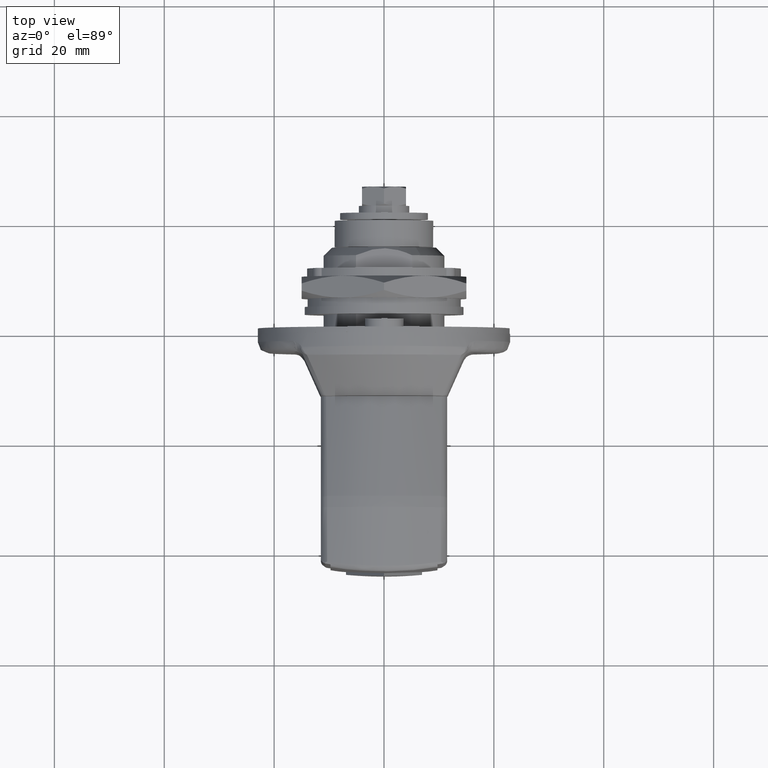
[diagram: clean part render]
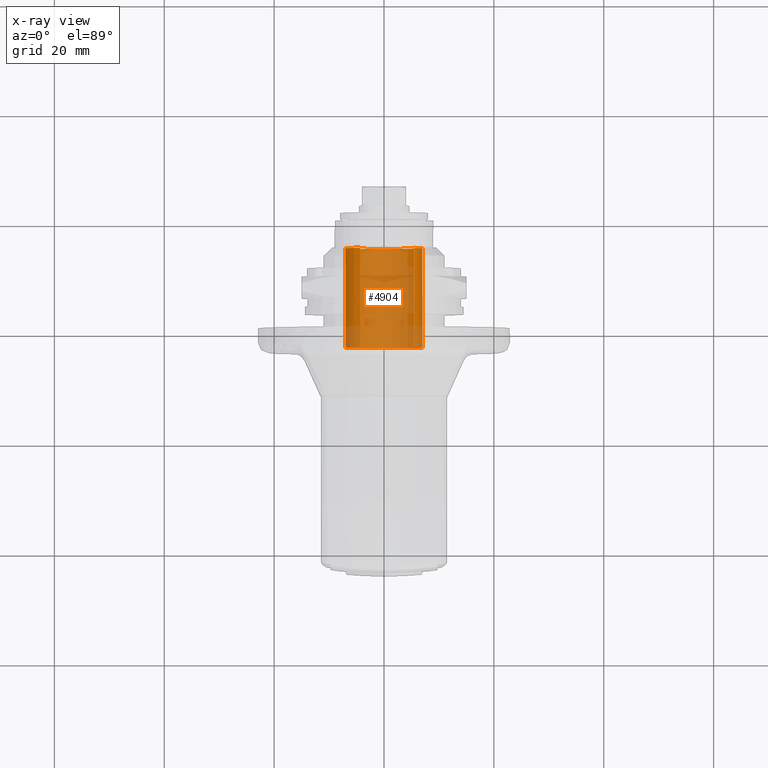
[diagram: x-ray — body ghosted, one internal face saturated and labeled with its STEP entity id]
A machine part, top view, then the same camera in x-ray: the body is ghosted and one INTERNAL B-rep face — a face not visible from any outside direction — is saturated and labeled: STEP entity #4904.
In plain terms, the highlighted face is a freeform B-spline surface patch.
Its self-contained STEP definition (entity closure, byte-faithful):
#4770=CARTESIAN_POINT('',(15.052500004397061,4.357602456463335,5.478257097966896));
#4771=CARTESIAN_POINT('',(15.052500004397062,9.835859554430231,1.120654641503561));
#4772=CARTESIAN_POINT('',(15.052500004397061,5.478257097966896,-4.357602456463335));
#4773=CARTESIAN_POINT('',(15.052500004397062,1.120654641503561,-9.835859554430231));
#4774=CARTESIAN_POINT('',(15.052500004397061,-4.357602456463335,-5.478257097966896));
#4775=CARTESIAN_POINT('',(15.052500004397062,-9.835859554430231,-1.120654641503561));
#4776=CARTESIAN_POINT('',(15.052500004397061,-5.478257097966896,4.357602456463335));
#4777=CARTESIAN_POINT('',(-3.963812500109928,4.357602456463335,5.478257097966896));
#4778=CARTESIAN_POINT('',(-3.963812500109928,9.835859554430231,1.120654641503561));
#4779=CARTESIAN_POINT('',(-3.963812500109928,5.478257097966896,-4.357602456463335));
#4780=CARTESIAN_POINT('',(-3.963812500109928,1.120654641503561,-9.835859554430231));
#4781=CARTESIAN_POINT('',(-3.963812500109928,-4.357602456463335,-5.478257097966896));
#4782=CARTESIAN_POINT('',(-3.963812500109928,-9.835859554430231,-1.120654641503561));
#4783=CARTESIAN_POINT('',(-3.963812500109928,-5.478257097966896,4.357602456463335));
#4791=(BOUNDED_SURFACE()B_SPLINE_SURFACE(2,1,((#4770,#4777),(#4771,#4778),(#4772,#4779),(#4773,#4780),(#4774,#4781),(#4775,#4782),(#4776,#4783)),.UNSPECIFIED.,.F.,.F.,.U.)B_SPLINE_SURFACE_WITH_KNOTS((3,2,2,3),(2,2),(0.0,11.597979746446660,23.195959492893319,34.793939239339977),(0.0,19.016312504506988),.UNSPECIFIED.)GEOMETRIC_REPRESENTATION_ITEM()RATIONAL_B_SPLINE_SURFACE(((1.0,1.0),(0.707106781186548,0.707106781186548),(1.0,1.0),(0.707106781186548,0.707106781186548),(1.0,1.0),(0.707106781186548,0.707106781186548),(1.0,1.0)))REPRESENTATION_ITEM('')SURFACE());
#4792=CARTESIAN_POINT('',(14.600000000932731,4.357602456465166,5.478257097965507));
#4793=VERTEX_POINT('',#4792);
#4794=CARTESIAN_POINT('',(14.600000004289811,6.999999999999998,5.986765E-017));
#4795=VERTEX_POINT('',#4794);
#4796=CARTESIAN_POINT('',(14.600000000932724,4.357602456465166,5.478257097965507));
#4797=CARTESIAN_POINT('',(14.600000002220757,7.000000000000289,3.376399185720192));
#4798=CARTESIAN_POINT('',(14.600000004289804,6.999999999999996,5.986765E-017));
#4806=(BOUNDED_CURVE()B_SPLINE_CURVE(2,(#4796,#4797,#4798),.UNSPECIFIED.,.F.,.U.)B_SPLINE_CURVE_WITH_KNOTS((3,3),(0.107863877391547,0.250000000000015),.UNSPECIFIED.)CURVE()GEOMETRIC_REPRESENTATION_ITEM()RATIONAL_B_SPLINE_CURVE((0.856305618644038,0.833477174158184,1.000000000000036))REPRESENTATION_ITEM(''));
#4807=EDGE_CURVE('',#4793,#4795,#4806,.T.);
#4808=ORIENTED_EDGE('',*,*,#4807,.T.);
#4809=CARTESIAN_POINT('',(14.600000000000200,0.0,-7.0));
#4810=VERTEX_POINT('',#4809);
#4811=CARTESIAN_POINT('',(14.600000004289809,6.999999999999999,5.986765E-017));
#4812=CARTESIAN_POINT('',(14.600000000000193,6.999999999999399,-6.999999999999999));
#4813=CARTESIAN_POINT('',(14.600000000000200,0.0,-7.0));
#4821=(BOUNDED_CURVE()B_SPLINE_CURVE(2,(#4811,#4812,#4813),.UNSPECIFIED.,.F.,.U.)B_SPLINE_CURVE_WITH_KNOTS((3,3),(0.250000000000015,0.500000000000000),.UNSPECIFIED.)CURVE()GEOMETRIC_REPRESENTATION_ITEM()RATIONAL_B_SPLINE_CURVE((0.999999999999964,0.707106781186565,1.0))REPRESENTATION_ITEM(''));
#4822=EDGE_CURVE('',#4795,#4810,#4821,.T.);
#4823=ORIENTED_EDGE('',*,*,#4822,.T.);
#4824=CARTESIAN_POINT('',(14.600000000537420,-6.953181471495571,-0.808249605289517));
#4825=VERTEX_POINT('',#4824);
#4826=CARTESIAN_POINT('',(14.600000000000200,0.0,-7.0));
#4827=CARTESIAN_POINT('',(14.600000000000206,-6.233441905788573,-7.0));
#4828=CARTESIAN_POINT('',(14.600000000537422,-6.953181471495571,-0.808249605289517));
#4836=(BOUNDED_CURVE()B_SPLINE_CURVE(2,(#4826,#4827,#4828),.UNSPECIFIED.,.F.,.U.)B_SPLINE_CURVE_WITH_KNOTS((3,3),(0.500000000000000,0.729999999999999),.UNSPECIFIED.)CURVE()GEOMETRIC_REPRESENTATION_ITEM()RATIONAL_B_SPLINE_CURVE((1.0,0.730538238691625,0.956886118190658))REPRESENTATION_ITEM(''));
#4837=EDGE_CURVE('',#4810,#4825,#4836,.T.);
#4838=ORIENTED_EDGE('',*,*,#4837,.T.);
#4839=CARTESIAN_POINT('',(14.600000000000200,-5.478257097965465,4.357602456465136));
#4840=VERTEX_POINT('',#4839);
#4841=CARTESIAN_POINT('',(14.600000000537419,-6.953181471495571,-0.808249605289517));
#4842=CARTESIAN_POINT('',(14.600000000000199,-7.0,-0.405480803685139));
#4843=CARTESIAN_POINT('',(14.600000000000200,-7.0,0.0));
#4844=CARTESIAN_POINT('',(14.600000000000197,-7.0,2.444509433953368));
#4845=CARTESIAN_POINT('',(14.600000000000200,-5.478257097965465,4.357602456465136));
#4853=(BOUNDED_CURVE()B_SPLINE_CURVE(2,(#4841,#4842,#4843,#4844,#4845),.UNSPECIFIED.,.F.,.U.)B_SPLINE_CURVE_WITH_KNOTS((3,2,3),(0.730000000000000,0.750000000000000,0.857863877391545),.UNSPECIFIED.)CURVE()GEOMETRIC_REPRESENTATION_ITEM()RATIONAL_B_SPLINE_CURVE((0.956886118190660,0.976568542494924,1.0,0.873629607028363,0.856305618644038))REPRESENTATION_ITEM(''));
#4854=EDGE_CURVE('',#4825,#4840,#4853,.T.);
#4855=ORIENTED_EDGE('',*,*,#4854,.T.);
#4856=CARTESIAN_POINT('',(-3.500000000000001,-5.478263230897994,4.357594746289976));
#4857=VERTEX_POINT('',#4856);
#4858=CARTESIAN_POINT('',(14.600000000000200,-5.478257097965465,4.357602456465136));
#4859=CARTESIAN_POINT('',(-3.500000000000001,-5.478263230897994,4.357594746289976));
#4860=QUASI_UNIFORM_CURVE('',1,(#4858,#4859),.UNSPECIFIED.,.F.,.U.);
#4861=EDGE_CURVE('',#4840,#4857,#4860,.T.);
#4862=ORIENTED_EDGE('',*,*,#4861,.T.);
#4863=CARTESIAN_POINT('',(-3.500000000000000,0.0,-7.0));
#4864=VERTEX_POINT('',#4863);
#4865=CARTESIAN_POINT('',(-3.500000000000000,0.0,-7.0));
#4866=CARTESIAN_POINT('',(-3.500000000000000,-6.999999999999999,-6.999999999999999));
#4867=CARTESIAN_POINT('',(-3.500000000000000,-7.0,0.0));
#4868=CARTESIAN_POINT('',(-3.499999999999999,-7.0,2.444503907283870));
#4869=CARTESIAN_POINT('',(-3.500000000000002,-5.478263230897994,4.357594746289976));
#4877=(BOUNDED_CURVE()B_SPLINE_CURVE(2,(#4865,#4866,#4867,#4868,#4869),.UNSPECIFIED.,.F.,.U.)B_SPLINE_CURVE_WITH_KNOTS((3,2,3),(0.500000000000000,0.750000000000000,0.857863664344619),.UNSPECIFIED.)CURVE()GEOMETRIC_REPRESENTATION_ITEM()RATIONAL_B_SPLINE_CURVE((1.0,0.707106781186547,1.0,0.873629856628362,0.856305687079283))REPRESENTATION_ITEM(''));
#4878=EDGE_CURVE('',#4864,#4857,#4877,.T.);
#4879=ORIENTED_EDGE('',*,*,#4878,.F.);
#4880=CARTESIAN_POINT('',(-3.500000000000000,4.357594944458137,5.478263073268819));
#4881=VERTEX_POINT('',#4880);
#4882=CARTESIAN_POINT('',(-3.500000000000000,4.357594944458137,5.478263073268820));
#4883=CARTESIAN_POINT('',(-3.500000000000000,7.0,3.376405101646589));
#4884=CARTESIAN_POINT('',(-3.500000000000000,7.0,0.0));
#4885=CARTESIAN_POINT('',(-3.500000000000000,6.999999999999999,-6.999999999999999));
#4886=CARTESIAN_POINT('',(-3.500000000000000,0.0,-7.0));
#4894=(BOUNDED_CURVE()B_SPLINE_CURVE(2,(#4882,#4883,#4884,#4885,#4886),.UNSPECIFIED.,.F.,.U.)B_SPLINE_CURVE_WITH_KNOTS((3,2,3),(0.107863669820379,0.250000000000000,0.500000000000000),.UNSPECIFIED.)CURVE()GEOMETRIC_REPRESENTATION_ITEM()RATIONAL_B_SPLINE_CURVE((0.856305685320341,0.833476930973436,1.0,0.707106781186547,1.0))REPRESENTATION_ITEM(''));
#4895=EDGE_CURVE('',#4881,#4864,#4894,.T.);
#4896=ORIENTED_EDGE('',*,*,#4895,.F.);
#4897=CARTESIAN_POINT('',(14.600000000932731,4.357602456465166,5.478257097965507));
#4898=CARTESIAN_POINT('',(-3.500000000000000,4.357594944458137,5.478263073268819));
#4899=QUASI_UNIFORM_CURVE('',1,(#4897,#4898),.UNSPECIFIED.,.F.,.U.);
#4900=EDGE_CURVE('',#4793,#4881,#4899,.T.);
#4901=ORIENTED_EDGE('',*,*,#4900,.F.);
#4902=EDGE_LOOP('',(#4808,#4823,#4838,#4855,#4862,#4879,#4896,#4901));
#4903=FACE_OUTER_BOUND('',#4902,.T.);
#4904=ADVANCED_FACE('',(#4903),#4791,.T.);